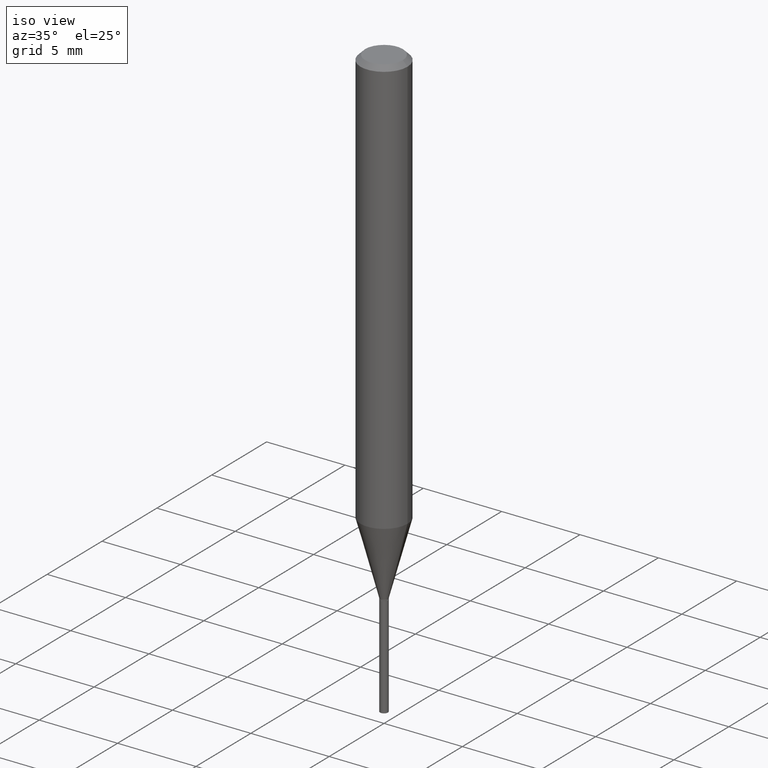
[diagram: clean part render]
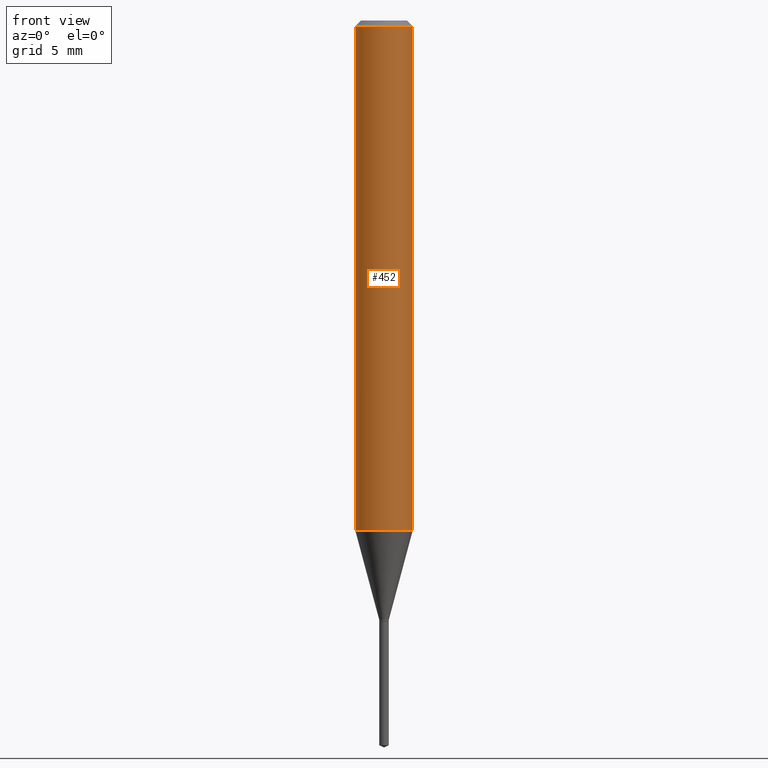
[diagram: tour spotlight — one face highlighted and labeled with its STEP entity id]
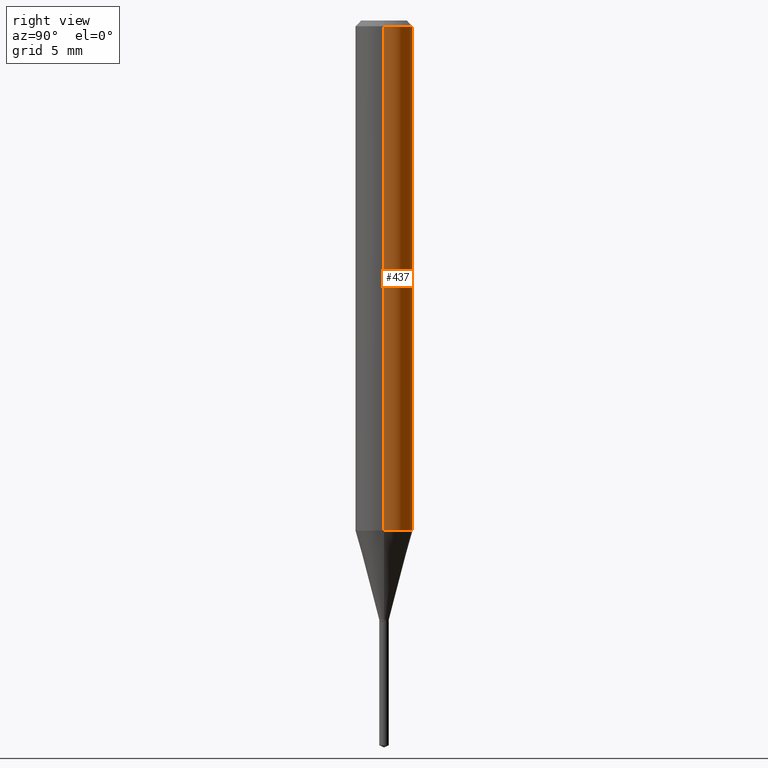
[diagram: tour spotlight — one face highlighted and labeled with its STEP entity id]
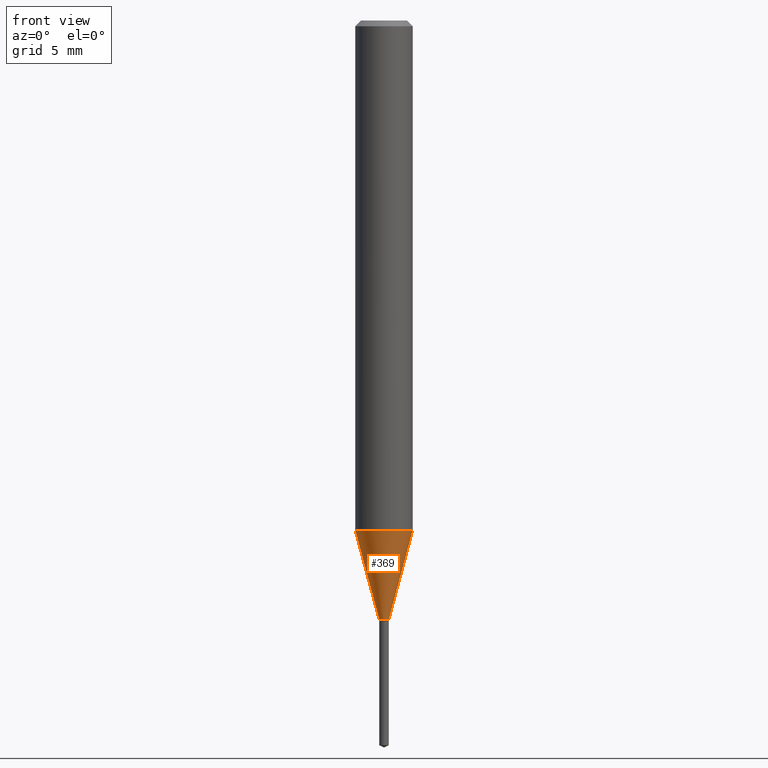
[diagram: tour spotlight — one face highlighted and labeled with its STEP entity id]
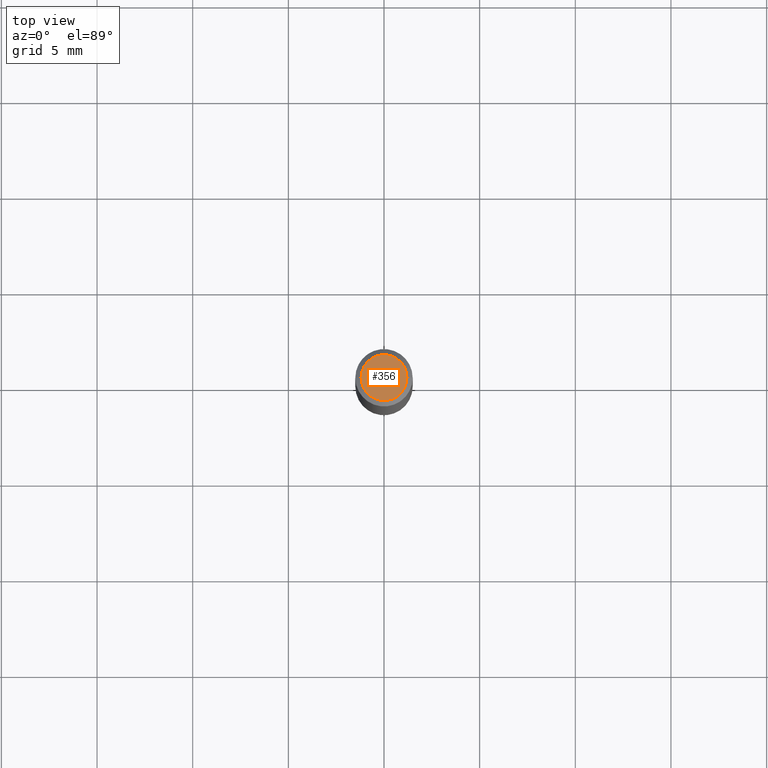
[diagram: tour spotlight — one face highlighted and labeled with its STEP entity id]
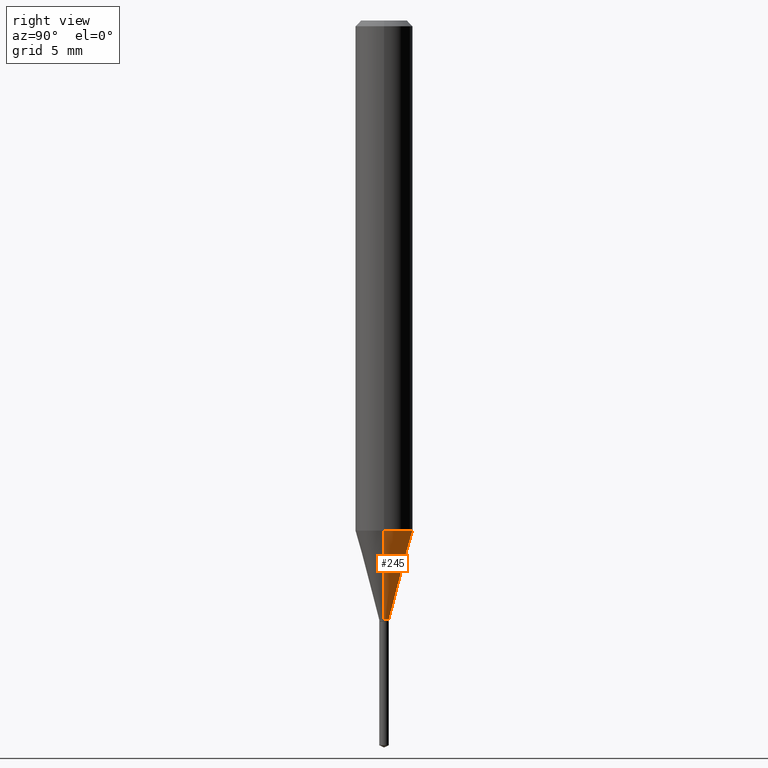
[diagram: tour spotlight — one face highlighted and labeled with its STEP entity id]
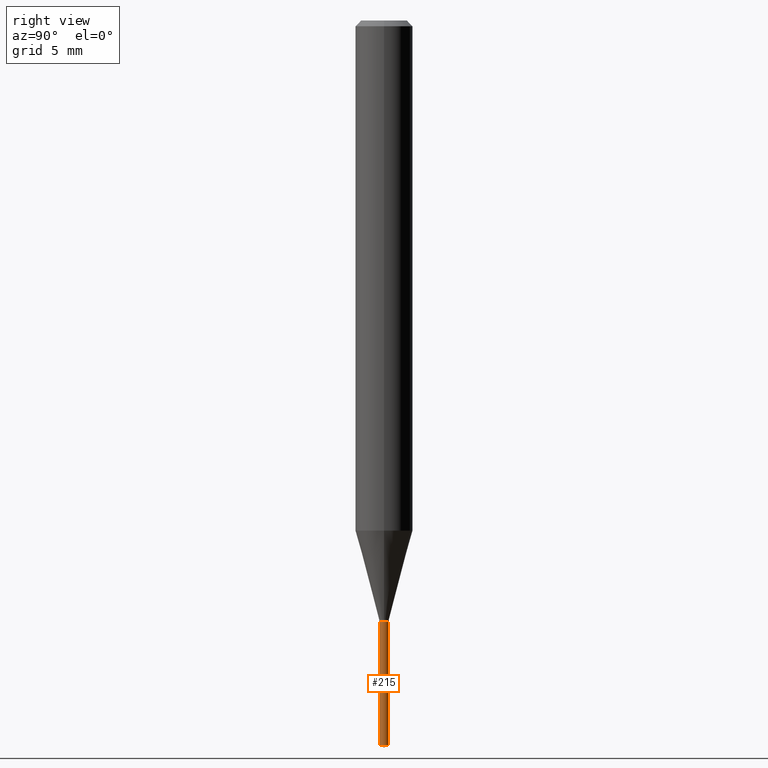
[diagram: tour spotlight — one face highlighted and labeled with its STEP entity id]
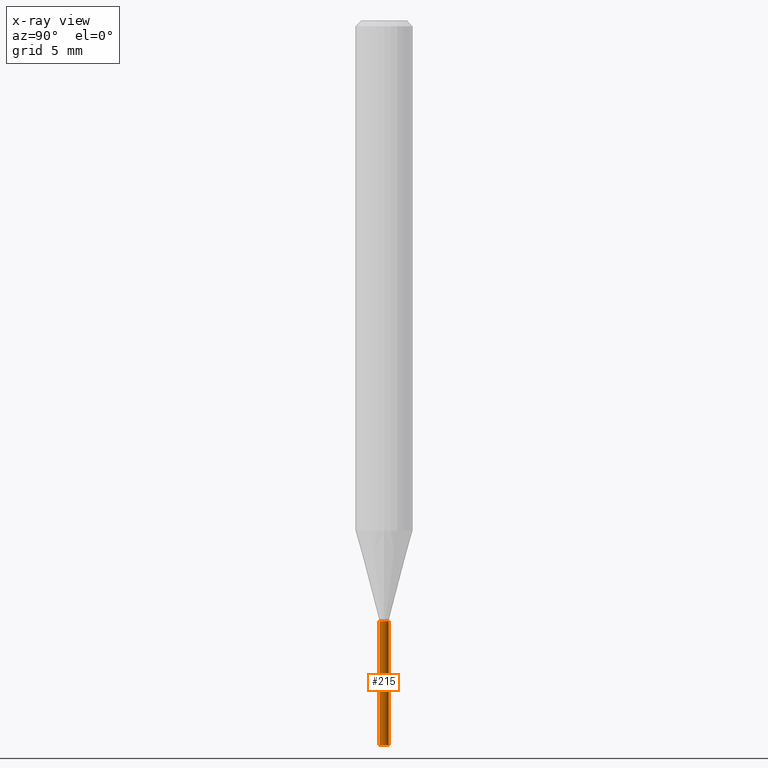
[diagram: x-ray of the same camera — body ghosted, this tour face saturated]
A machine part: a face-by-face anatomy tour. The part has 17 B-rep faces; the first image is the clean iso view, then the 6 largest visible faces are spotlighted one at a time (largest first), each with its STEP entity span.

Face 1 — front view, entity #452. In plain terms, the highlighted cylindrical surface (edge-blend (fillet) strip) has radius 1.4999 mm, axis along (-0, 0, 1).
Definition (entity closure, byte-faithful):
#19 = CARTESIAN_POINT ( 'NONE',  ( 0.05905000000000013016, -4.077292902400757654E-15, -1.049683100267611247 ) ) ;
#23 = VERTEX_POINT ( 'NONE', #143 ) ;
#25 = AXIS2_PLACEMENT_3D ( 'NONE', #182, #367, #294 ) ;
#38 = ORIENTED_EDGE ( 'NONE', *, *, #188, .F. ) ;
#53 = EDGE_CURVE ( 'NONE', #284, #23, #462, .T. ) ;
#103 = EDGE_CURVE ( 'NONE', #360, #323, #193, .T. ) ;
#109 = DIRECTION ( 'NONE',  ( 1.000000000000000000, -6.982962677686266711E-15, 4.876176775795936353E-29 ) ) ;
#118 = DIRECTION ( 'NONE',  ( 1.000000000000000000, -6.982962677686266711E-15, 0.000000000000000000 ) ) ;
#137 = EDGE_LOOP ( 'NONE', ( #430, #329, #477, #38 ) ) ;
#143 = CARTESIAN_POINT ( 'NONE',  ( 0.05904999999999999832, -4.535783407291118600E-16, -0.01181000000000007218 ) ) ;
#182 = CARTESIAN_POINT ( 'NONE',  ( 2.566967278084148050E-29, -3.664948956283382734E-15, -1.049683100267611247 ) ) ;
#188 = EDGE_CURVE ( 'NONE', #323, #23, #236, .T. ) ;
#190 = CIRCLE ( 'NONE', #25, 0.05905000000000013710 ) ;
#193 = LINE ( 'NONE', #375, #332 ) ;
#198 = DIRECTION ( 'NONE',  ( -2.445468806185136877E-29, 3.491481338843145188E-15, 1.000000000000000000 ) ) ;
#213 = VECTOR ( 'NONE', #345, 39.37007874015748143 ) ;
#236 = CIRCLE ( 'NONE', #275, 0.05904999999999999832 ) ;
#265 = CARTESIAN_POINT ( 'NONE',  ( 0.05905000000000006771, -4.123439461173745257E-16, 2.879382386107503723E-30 ) ) ;
#275 = AXIS2_PLACEMENT_3D ( 'NONE', #377, #342, #118 ) ;
#284 = VERTEX_POINT ( 'NONE', #19 ) ;
#294 = DIRECTION ( 'NONE',  ( 1.000000000000000000, -6.982962677686264344E-15, 0.000000000000000000 ) ) ;
#295 = CARTESIAN_POINT ( 'NONE',  ( 0.000000000000000000, 0.000000000000000000, 0.000000000000000000 ) ) ;
#323 = VERTEX_POINT ( 'NONE', #463 ) ;
#327 = CARTESIAN_POINT ( 'NONE',  ( -0.05905000000000013016, -3.245373470817042452E-15, -1.049683100267611247 ) ) ;
#329 = ORIENTED_EDGE ( 'NONE', *, *, #414, .T. ) ;
#332 = VECTOR ( 'NONE', #198, 39.37007874015748143 ) ;
#342 = DIRECTION ( 'NONE',  ( -2.445468806185136597E-29, 3.491481338843145583E-15, 1.000000000000000000 ) ) ;
#345 = DIRECTION ( 'NONE',  ( -2.445468806185136877E-29, 3.491481338843145188E-15, 1.000000000000000000 ) ) ;
#360 = VERTEX_POINT ( 'NONE', #327 ) ;
#367 = DIRECTION ( 'NONE',  ( -2.445468806185136597E-29, 3.491481338843145583E-15, 1.000000000000000000 ) ) ;
#375 = CARTESIAN_POINT ( 'NONE',  ( -0.05905000000000006771, 4.195754854663396409E-16, -2.904631170795525045E-30 ) ) ;
#377 = CARTESIAN_POINT ( 'NONE',  ( 2.888098660104664204E-31, -4.123439461173780263E-17, -0.01181000000000007218 ) ) ;
#392 = AXIS2_PLACEMENT_3D ( 'NONE', #295, #448, #109 ) ;
#414 = EDGE_CURVE ( 'NONE', #360, #284, #190, .T. ) ;
#430 = ORIENTED_EDGE ( 'NONE', *, *, #103, .F. ) ;
#441 = FACE_OUTER_BOUND ( 'NONE', #137, .T. ) ;
#448 = DIRECTION ( 'NONE',  ( -2.445468806185136597E-29, 3.491481338843145583E-15, 1.000000000000000000 ) ) ;
#452 = ADVANCED_FACE ( 'NONE', ( #441 ), #476, .T. ) ;
#462 = LINE ( 'NONE', #265, #213 ) ;
#463 = CARTESIAN_POINT ( 'NONE',  ( -0.05904999999999999832, -1.433516189981219950E-15, -0.01181000000000007218 ) ) ;
#476 = CYLINDRICAL_SURFACE ( 'NONE', #392, 0.05905000000000006771 ) ;
#477 = ORIENTED_EDGE ( 'NONE', *, *, #53, .T. ) ;

Face 2 — right view, entity #437. In plain terms, the highlighted cylindrical surface (edge-blend (fillet) strip) has radius 1.4999 mm, axis along (-0, 0, 1).
Definition (entity closure, byte-faithful):
#19 = CARTESIAN_POINT ( 'NONE',  ( 0.05905000000000013016, -4.077292902400757654E-15, -1.049683100267611247 ) ) ;
#23 = VERTEX_POINT ( 'NONE', #143 ) ;
#27 = CARTESIAN_POINT ( 'NONE',  ( 2.888098660104664204E-31, -4.123439461173780263E-17, -0.01181000000000007218 ) ) ;
#53 = EDGE_CURVE ( 'NONE', #284, #23, #462, .T. ) ;
#85 = AXIS2_PLACEMENT_3D ( 'NONE', #27, #119, #267 ) ;
#91 = AXIS2_PLACEMENT_3D ( 'NONE', #279, #349, #468 ) ;
#103 = EDGE_CURVE ( 'NONE', #360, #323, #193, .T. ) ;
#119 = DIRECTION ( 'NONE',  ( -2.445468806185136597E-29, 3.491481338843145583E-15, 1.000000000000000000 ) ) ;
#139 = DIRECTION ( 'NONE',  ( 1.000000000000000000, -6.982962677686266711E-15, 4.876176775795936353E-29 ) ) ;
#143 = CARTESIAN_POINT ( 'NONE',  ( 0.05904999999999999832, -4.535783407291118600E-16, -0.01181000000000007218 ) ) ;
#154 = CIRCLE ( 'NONE', #91, 0.05905000000000013710 ) ;
#174 = CIRCLE ( 'NONE', #85, 0.05904999999999999832 ) ;
#179 = DIRECTION ( 'NONE',  ( -2.445468806185136597E-29, 3.491481338843145583E-15, 1.000000000000000000 ) ) ;
#193 = LINE ( 'NONE', #375, #332 ) ;
#198 = DIRECTION ( 'NONE',  ( -2.445468806185136877E-29, 3.491481338843145188E-15, 1.000000000000000000 ) ) ;
#213 = VECTOR ( 'NONE', #345, 39.37007874015748143 ) ;
#224 = ORIENTED_EDGE ( 'NONE', *, *, #53, .F. ) ;
#229 = AXIS2_PLACEMENT_3D ( 'NONE', #400, #179, #139 ) ;
#259 = EDGE_CURVE ( 'NONE', #284, #360, #154, .T. ) ;
#265 = CARTESIAN_POINT ( 'NONE',  ( 0.05905000000000006771, -4.123439461173745257E-16, 2.879382386107503723E-30 ) ) ;
#267 = DIRECTION ( 'NONE',  ( 1.000000000000000000, -6.982962677686266711E-15, 0.000000000000000000 ) ) ;
#278 = EDGE_LOOP ( 'NONE', ( #467, #314, #296, #224 ) ) ;
#279 = CARTESIAN_POINT ( 'NONE',  ( 2.566967278084148050E-29, -3.664948956283382734E-15, -1.049683100267611247 ) ) ;
#284 = VERTEX_POINT ( 'NONE', #19 ) ;
#296 = ORIENTED_EDGE ( 'NONE', *, *, #484, .F. ) ;
#314 = ORIENTED_EDGE ( 'NONE', *, *, #103, .T. ) ;
#323 = VERTEX_POINT ( 'NONE', #463 ) ;
#324 = CYLINDRICAL_SURFACE ( 'NONE', #229, 0.05905000000000006771 ) ;
#327 = CARTESIAN_POINT ( 'NONE',  ( -0.05905000000000013016, -3.245373470817042452E-15, -1.049683100267611247 ) ) ;
#332 = VECTOR ( 'NONE', #198, 39.37007874015748143 ) ;
#345 = DIRECTION ( 'NONE',  ( -2.445468806185136877E-29, 3.491481338843145188E-15, 1.000000000000000000 ) ) ;
#349 = DIRECTION ( 'NONE',  ( -2.445468806185136597E-29, 3.491481338843145583E-15, 1.000000000000000000 ) ) ;
#360 = VERTEX_POINT ( 'NONE', #327 ) ;
#375 = CARTESIAN_POINT ( 'NONE',  ( -0.05905000000000006771, 4.195754854663396409E-16, -2.904631170795525045E-30 ) ) ;
#400 = CARTESIAN_POINT ( 'NONE',  ( 0.000000000000000000, 0.000000000000000000, 0.000000000000000000 ) ) ;
#437 = ADVANCED_FACE ( 'NONE', ( #438 ), #324, .T. ) ;
#438 = FACE_OUTER_BOUND ( 'NONE', #278, .T. ) ;
#462 = LINE ( 'NONE', #265, #213 ) ;
#463 = CARTESIAN_POINT ( 'NONE',  ( -0.05904999999999999832, -1.433516189981219950E-15, -0.01181000000000007218 ) ) ;
#467 = ORIENTED_EDGE ( 'NONE', *, *, #259, .T. ) ;
#468 = DIRECTION ( 'NONE',  ( 1.000000000000000000, -6.982962677686264344E-15, 0.000000000000000000 ) ) ;
#484 = EDGE_CURVE ( 'NONE', #23, #323, #174, .T. ) ;

Face 3 — front view, entity #369. In plain terms, the highlighted conical surface has half-angle 15 deg.
Definition (entity closure, byte-faithful):
#7 = DIRECTION ( 'NONE',  ( 0.2588190451025213501, 1.565188264969621968E-15, 0.9659258262890682012 ) ) ;
#19 = CARTESIAN_POINT ( 'NONE',  ( 0.05905000000000013016, -4.077292902400757654E-15, -1.049683100267611247 ) ) ;
#25 = AXIS2_PLACEMENT_3D ( 'NONE', #182, #367, #294 ) ;
#28 = VERTEX_POINT ( 'NONE', #254 ) ;
#33 = CONICAL_SURFACE ( 'NONE', #200, 0.009849999999999999381, 0.2617993877991500740 ) ;
#55 = CARTESIAN_POINT ( 'NONE',  ( 3.015996678668129136E-29, -4.306043935195251097E-15, -1.233299999999999841 ) ) ;
#66 = ORIENTED_EDGE ( 'NONE', *, *, #414, .F. ) ;
#73 = EDGE_CURVE ( 'NONE', #106, #284, #455, .T. ) ;
#106 = VERTEX_POINT ( 'NONE', #196 ) ;
#107 = FACE_OUTER_BOUND ( 'NONE', #250, .T. ) ;
#142 = LINE ( 'NONE', #145, #322 ) ;
#145 = CARTESIAN_POINT ( 'NONE',  ( -0.009849999999999999381, -4.236055475722881048E-15, -1.233299999999999841 ) ) ;
#161 = AXIS2_PLACEMENT_3D ( 'NONE', #55, #466, #470 ) ;
#182 = CARTESIAN_POINT ( 'NONE',  ( 2.566967278084148050E-29, -3.664948956283382734E-15, -1.049683100267611247 ) ) ;
#185 = CARTESIAN_POINT ( 'NONE',  ( 3.015996678668129136E-29, -4.306043935195251097E-15, -1.233299999999999841 ) ) ;
#190 = CIRCLE ( 'NONE', #25, 0.05905000000000013710 ) ;
#196 = CARTESIAN_POINT ( 'NONE',  ( 0.009849999999999999381, -4.374826117570460704E-15, -1.233299999999999841 ) ) ;
#200 = AXIS2_PLACEMENT_3D ( 'NONE', #185, #253, #372 ) ;
#222 = EDGE_CURVE ( 'NONE', #28, #106, #293, .T. ) ;
#250 = EDGE_LOOP ( 'NONE', ( #427, #328, #439, #66 ) ) ;
#253 = DIRECTION ( 'NONE',  ( -2.445468806185136597E-29, 3.491481338843145583E-15, 1.000000000000000000 ) ) ;
#254 = CARTESIAN_POINT ( 'NONE',  ( -0.009849999999999999381, -4.240419827396435201E-15, -1.233299999999999841 ) ) ;
#284 = VERTEX_POINT ( 'NONE', #19 ) ;
#293 = CIRCLE ( 'NONE', #161, 0.009849999999999999381 ) ;
#294 = DIRECTION ( 'NONE',  ( 1.000000000000000000, -6.982962677686264344E-15, 0.000000000000000000 ) ) ;
#322 = VECTOR ( 'NONE', #366, 39.37007874015747433 ) ;
#327 = CARTESIAN_POINT ( 'NONE',  ( -0.05905000000000013016, -3.245373470817042452E-15, -1.049683100267611247 ) ) ;
#328 = ORIENTED_EDGE ( 'NONE', *, *, #222, .T. ) ;
#339 = VECTOR ( 'NONE', #7, 39.37007874015747433 ) ;
#360 = VERTEX_POINT ( 'NONE', #327 ) ;
#366 = DIRECTION ( 'NONE',  ( -0.2588190451025213501, 5.211531920934551042E-15, 0.9659258262890682012 ) ) ;
#367 = DIRECTION ( 'NONE',  ( -2.445468806185136597E-29, 3.491481338843145583E-15, 1.000000000000000000 ) ) ;
#369 = ADVANCED_FACE ( 'NONE', ( #107 ), #33, .T. ) ;
#372 = DIRECTION ( 'NONE',  ( 1.000000000000000000, -6.982962677686278543E-15, 0.000000000000000000 ) ) ;
#414 = EDGE_CURVE ( 'NONE', #360, #284, #190, .T. ) ;
#427 = ORIENTED_EDGE ( 'NONE', *, *, #479, .F. ) ;
#439 = ORIENTED_EDGE ( 'NONE', *, *, #73, .T. ) ;
#455 = LINE ( 'NONE', #487, #339 ) ;
#466 = DIRECTION ( 'NONE',  ( -2.445468806185136597E-29, 3.491481338843145583E-15, 1.000000000000000000 ) ) ;
#470 = DIRECTION ( 'NONE',  ( 1.000000000000000000, -6.982962677686278543E-15, 0.000000000000000000 ) ) ;
#479 = EDGE_CURVE ( 'NONE', #28, #360, #142, .T. ) ;
#487 = CARTESIAN_POINT ( 'NONE',  ( 0.009849999999999999381, -4.374826117570460704E-15, -1.233299999999999841 ) ) ;

Face 4 — top view, entity #356. In plain terms, the highlighted planar face has unit normal (0, -0, -1).
Definition (entity closure, byte-faithful):
#2 = CARTESIAN_POINT ( 'NONE',  ( 0.04724000000000000421, -3.852183633974369345E-16, -3.380025165621689721E-19 ) ) ;
#35 = VERTEX_POINT ( 'NONE', #331 ) ;
#72 = DIRECTION ( 'NONE',  ( 2.438088387897960049E-29, -3.491481338843145188E-15, -1.000000000000000000 ) ) ;
#83 = AXIS2_PLACEMENT_3D ( 'NONE', #272, #88, #158 ) ;
#88 = DIRECTION ( 'NONE',  ( -2.445468806185136597E-29, 3.491481338843145583E-15, 1.000000000000000000 ) ) ;
#92 = EDGE_CURVE ( 'NONE', #35, #173, #292, .T. ) ;
#114 = CIRCLE ( 'NONE', #450, 0.04724000000000000421 ) ;
#116 = DIRECTION ( 'NONE',  ( -2.445468806185136597E-29, 3.491481338843145583E-15, 1.000000000000000000 ) ) ;
#147 = CARTESIAN_POINT ( 'NONE',  ( 4.132873053354867254E-48, -5.900647395337818946E-34, -1.690012582823346072E-19 ) ) ;
#149 = EDGE_LOOP ( 'NONE', ( #165, #286 ) ) ;
#158 = DIRECTION ( 'NONE',  ( 1.000000000000000000, -6.982962677686266711E-15, 4.876185090822587894E-29 ) ) ;
#165 = ORIENTED_EDGE ( 'NONE', *, *, #92, .T. ) ;
#172 = EDGE_CURVE ( 'NONE', #173, #35, #114, .T. ) ;
#173 = VERTEX_POINT ( 'NONE', #2 ) ;
#178 = PLANE ( 'NONE',  #333 ) ;
#226 = CARTESIAN_POINT ( 'NONE',  ( 8.265746106709734507E-48, -1.180129479067563789E-33, -3.380025165646692144E-19 ) ) ;
#272 = CARTESIAN_POINT ( 'NONE',  ( 8.265746106709734507E-48, -1.180129479067563789E-33, -3.380025165646692144E-19 ) ) ;
#286 = ORIENTED_EDGE ( 'NONE', *, *, #172, .T. ) ;
#292 = CIRCLE ( 'NONE', #83, 0.04724000000000000421 ) ;
#331 = CARTESIAN_POINT ( 'NONE',  ( -0.04724000000000000421, 3.504923541997677355E-16, -3.380025165670481712E-19 ) ) ;
#333 = AXIS2_PLACEMENT_3D ( 'NONE', #147, #72, #370 ) ;
#356 = ADVANCED_FACE ( 'NONE', ( #474 ), #178, .F. ) ;
#370 = DIRECTION ( 'NONE',  ( -1.000000000000000000, 6.982962677686265922E-15, -4.876176775795935793E-29 ) ) ;
#415 = DIRECTION ( 'NONE',  ( 1.000000000000000000, -6.982962677686266711E-15, 4.876185090822587894E-29 ) ) ;
#450 = AXIS2_PLACEMENT_3D ( 'NONE', #226, #116, #415 ) ;
#474 = FACE_OUTER_BOUND ( 'NONE', #149, .T. ) ;

Face 5 — right view, entity #245. In plain terms, the highlighted conical surface has half-angle 15 deg.
Definition (entity closure, byte-faithful):
#7 = DIRECTION ( 'NONE',  ( 0.2588190451025213501, 1.565188264969621968E-15, 0.9659258262890682012 ) ) ;
#19 = CARTESIAN_POINT ( 'NONE',  ( 0.05905000000000013016, -4.077292902400757654E-15, -1.049683100267611247 ) ) ;
#28 = VERTEX_POINT ( 'NONE', #254 ) ;
#51 = AXIS2_PLACEMENT_3D ( 'NONE', #256, #446, #175 ) ;
#59 = AXIS2_PLACEMENT_3D ( 'NONE', #277, #428, #201 ) ;
#73 = EDGE_CURVE ( 'NONE', #106, #284, #455, .T. ) ;
#91 = AXIS2_PLACEMENT_3D ( 'NONE', #279, #349, #468 ) ;
#106 = VERTEX_POINT ( 'NONE', #196 ) ;
#121 = CIRCLE ( 'NONE', #51, 0.009849999999999999381 ) ;
#142 = LINE ( 'NONE', #145, #322 ) ;
#145 = CARTESIAN_POINT ( 'NONE',  ( -0.009849999999999999381, -4.236055475722881048E-15, -1.233299999999999841 ) ) ;
#154 = CIRCLE ( 'NONE', #91, 0.05905000000000013710 ) ;
#175 = DIRECTION ( 'NONE',  ( 1.000000000000000000, -6.982962677686278543E-15, 0.000000000000000000 ) ) ;
#196 = CARTESIAN_POINT ( 'NONE',  ( 0.009849999999999999381, -4.374826117570460704E-15, -1.233299999999999841 ) ) ;
#201 = DIRECTION ( 'NONE',  ( 1.000000000000000000, -6.982962677686278543E-15, 0.000000000000000000 ) ) ;
#204 = FACE_OUTER_BOUND ( 'NONE', #411, .T. ) ;
#243 = CONICAL_SURFACE ( 'NONE', #59, 0.009849999999999999381, 0.2617993877991500740 ) ;
#245 = ADVANCED_FACE ( 'NONE', ( #204 ), #243, .T. ) ;
#254 = CARTESIAN_POINT ( 'NONE',  ( -0.009849999999999999381, -4.240419827396435201E-15, -1.233299999999999841 ) ) ;
#256 = CARTESIAN_POINT ( 'NONE',  ( 3.015996678668129136E-29, -4.306043935195251097E-15, -1.233299999999999841 ) ) ;
#259 = EDGE_CURVE ( 'NONE', #284, #360, #154, .T. ) ;
#277 = CARTESIAN_POINT ( 'NONE',  ( 3.015996678668129136E-29, -4.306043935195251097E-15, -1.233299999999999841 ) ) ;
#279 = CARTESIAN_POINT ( 'NONE',  ( 2.566967278084148050E-29, -3.664948956283382734E-15, -1.049683100267611247 ) ) ;
#284 = VERTEX_POINT ( 'NONE', #19 ) ;
#318 = ORIENTED_EDGE ( 'NONE', *, *, #479, .T. ) ;
#320 = ORIENTED_EDGE ( 'NONE', *, *, #73, .F. ) ;
#322 = VECTOR ( 'NONE', #366, 39.37007874015747433 ) ;
#327 = CARTESIAN_POINT ( 'NONE',  ( -0.05905000000000013016, -3.245373470817042452E-15, -1.049683100267611247 ) ) ;
#339 = VECTOR ( 'NONE', #7, 39.37007874015747433 ) ;
#349 = DIRECTION ( 'NONE',  ( -2.445468806185136597E-29, 3.491481338843145583E-15, 1.000000000000000000 ) ) ;
#360 = VERTEX_POINT ( 'NONE', #327 ) ;
#366 = DIRECTION ( 'NONE',  ( -0.2588190451025213501, 5.211531920934551042E-15, 0.9659258262890682012 ) ) ;
#394 = ORIENTED_EDGE ( 'NONE', *, *, #404, .T. ) ;
#404 = EDGE_CURVE ( 'NONE', #106, #28, #121, .T. ) ;
#411 = EDGE_LOOP ( 'NONE', ( #394, #318, #475, #320 ) ) ;
#428 = DIRECTION ( 'NONE',  ( -2.445468806185136597E-29, 3.491481338843145583E-15, 1.000000000000000000 ) ) ;
#446 = DIRECTION ( 'NONE',  ( -2.445468806185136597E-29, 3.491481338843145583E-15, 1.000000000000000000 ) ) ;
#455 = LINE ( 'NONE', #487, #339 ) ;
#468 = DIRECTION ( 'NONE',  ( 1.000000000000000000, -6.982962677686264344E-15, 0.000000000000000000 ) ) ;
#475 = ORIENTED_EDGE ( 'NONE', *, *, #259, .F. ) ;
#479 = EDGE_CURVE ( 'NONE', #28, #360, #142, .T. ) ;
#487 = CARTESIAN_POINT ( 'NONE',  ( 0.009849999999999999381, -4.374826117570460704E-15, -1.233299999999999841 ) ) ;

Face 6 — right view, entity #215. An x-ray twin of the same camera follows (body ghosted, this face saturated) — the face is partly hidden behind the body. In plain terms, the highlighted cylindrical surface (edge-blend (fillet) strip) has radius 0.2502 mm, axis along (-0, 0, 1).
Definition (entity closure, byte-faithful):
#16 = CARTESIAN_POINT ( 'NONE',  ( -6.878218237517947024E-17, -0.009850000000004313638, -1.236299999999999955 ) ) ;
#21 = DIRECTION ( 'NONE',  ( -6.982962677686265133E-15, -1.000000000000000000, 0.000000000000000000 ) ) ;
#36 = DIRECTION ( 'NONE',  ( -6.982962677686265133E-15, -1.000000000000000000, 0.000000000000000000 ) ) ;
#58 = VERTEX_POINT ( 'NONE', #86 ) ;
#62 = LINE ( 'NONE', #16, #353 ) ;
#67 = ORIENTED_EDGE ( 'NONE', *, *, #287, .F. ) ;
#70 = VECTOR ( 'NONE', #391, 39.37007874015748143 ) ;
#86 = CARTESIAN_POINT ( 'NONE',  ( 6.998845947240636105E-17, 0.009849999999995683389, -1.236299999999999955 ) ) ;
#93 = DIRECTION ( 'NONE',  ( -6.982962677686265133E-15, -1.000000000000000000, 0.000000000000000000 ) ) ;
#95 = DIRECTION ( 'NONE',  ( -2.445453492125453683E-29, 3.491503269448233447E-15, 1.000000000000000000 ) ) ;
#98 = AXIS2_PLACEMENT_3D ( 'NONE', #359, #134, #21 ) ;
#100 = CARTESIAN_POINT ( 'NONE',  ( -6.878218237517947024E-17, -0.009850000000004313638, -1.236299999999999955 ) ) ;
#101 = DIRECTION ( 'NONE',  ( -2.445453492125453683E-29, 3.491503269448233447E-15, 1.000000000000000000 ) ) ;
#102 = VERTEX_POINT ( 'NONE', #337 ) ;
#130 = LINE ( 'NONE', #235, #70 ) ;
#134 = DIRECTION ( 'NONE',  ( -2.445453492125453683E-29, 3.491503269448233447E-15, 1.000000000000000000 ) ) ;
#135 = EDGE_LOOP ( 'NONE', ( #371, #325, #289, #67 ) ) ;
#208 = DIRECTION ( 'NONE',  ( -2.445453492125453683E-29, 3.491503269448233447E-15, 1.000000000000000000 ) ) ;
#211 = VERTEX_POINT ( 'NONE', #100 ) ;
#215 = ADVANCED_FACE ( 'NONE', ( #387 ), #426, .T. ) ;
#235 = CARTESIAN_POINT ( 'NONE',  ( 6.998845947240008714E-17, 0.009849999999995683389, -1.236299999999999955 ) ) ;
#239 = EDGE_CURVE ( 'NONE', #102, #58, #130, .T. ) ;
#247 = CARTESIAN_POINT ( 'NONE',  ( 3.023333085086683703E-29, -4.316518379211780118E-15, -1.236299999999999955 ) ) ;
#287 = EDGE_CURVE ( 'NONE', #478, #211, #62, .T. ) ;
#289 = ORIENTED_EDGE ( 'NONE', *, *, #401, .F. ) ;
#291 = CARTESIAN_POINT ( 'NONE',  ( 3.023333085086683703E-29, -4.316518379211780118E-15, -1.236299999999999955 ) ) ;
#316 = EDGE_CURVE ( 'NONE', #478, #102, #464, .T. ) ;
#325 = ORIENTED_EDGE ( 'NONE', *, *, #239, .T. ) ;
#337 = CARTESIAN_POINT ( 'NONE',  ( 6.998845947240633640E-17, 0.009849999999994791741, -1.491506869567173377 ) ) ;
#353 = VECTOR ( 'NONE', #95, 39.37007874015748143 ) ;
#359 = CARTESIAN_POINT ( 'NONE',  ( 3.647429615484133515E-29, -5.207573998691215468E-15, -1.491506869567173377 ) ) ;
#371 = ORIENTED_EDGE ( 'NONE', *, *, #316, .T. ) ;
#387 = FACE_OUTER_BOUND ( 'NONE', #135, .T. ) ;
#391 = DIRECTION ( 'NONE',  ( -2.445453492125453683E-29, 3.491503269448233447E-15, 1.000000000000000000 ) ) ;
#401 = EDGE_CURVE ( 'NONE', #211, #58, #471, .T. ) ;
#403 = AXIS2_PLACEMENT_3D ( 'NONE', #291, #101, #36 ) ;
#408 = CARTESIAN_POINT ( 'NONE',  ( -6.878218237517324563E-17, -0.009850000000005208756, -1.491506869567173377 ) ) ;
#425 = AXIS2_PLACEMENT_3D ( 'NONE', #247, #208, #93 ) ;
#426 = CYLINDRICAL_SURFACE ( 'NONE', #425, 0.009849999999999999381 ) ;
#464 = CIRCLE ( 'NONE', #98, 0.009849999999999999381 ) ;
#471 = CIRCLE ( 'NONE', #403, 0.009849999999999999381 ) ;
#478 = VERTEX_POINT ( 'NONE', #408 ) ;